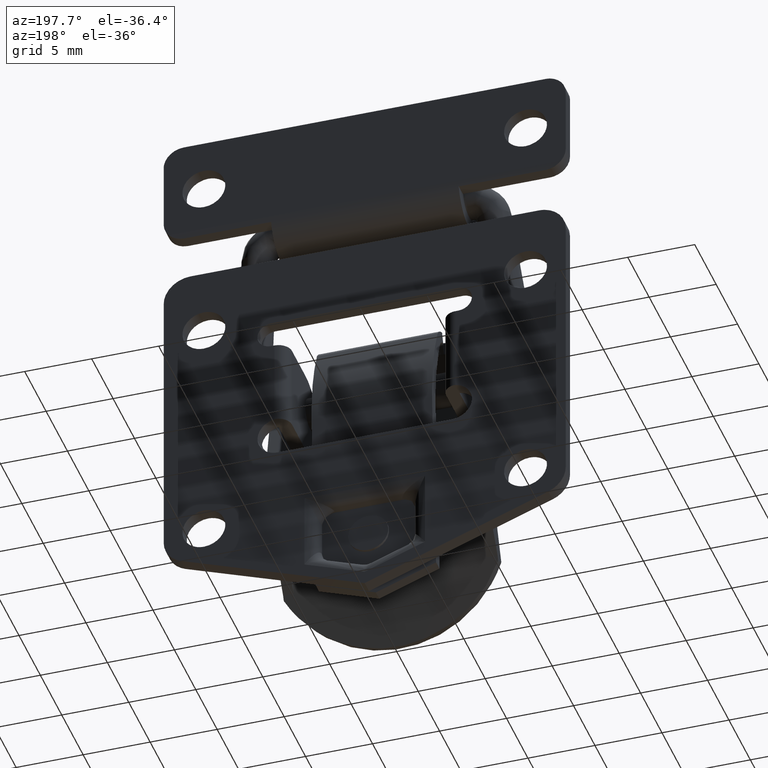
[diagram: clean part render]
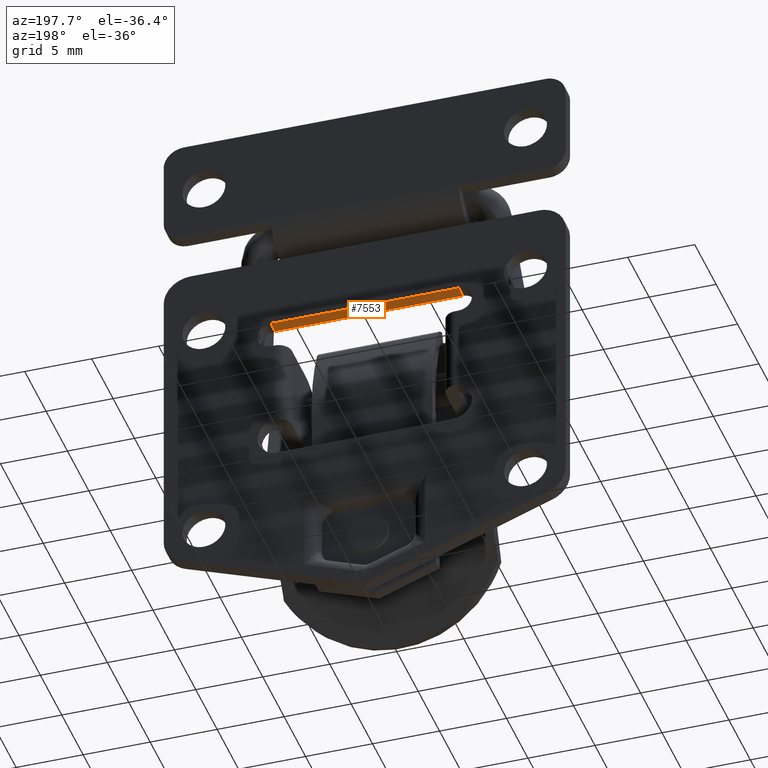
[diagram: same view with one face highlighted and labeled with its STEP entity id]
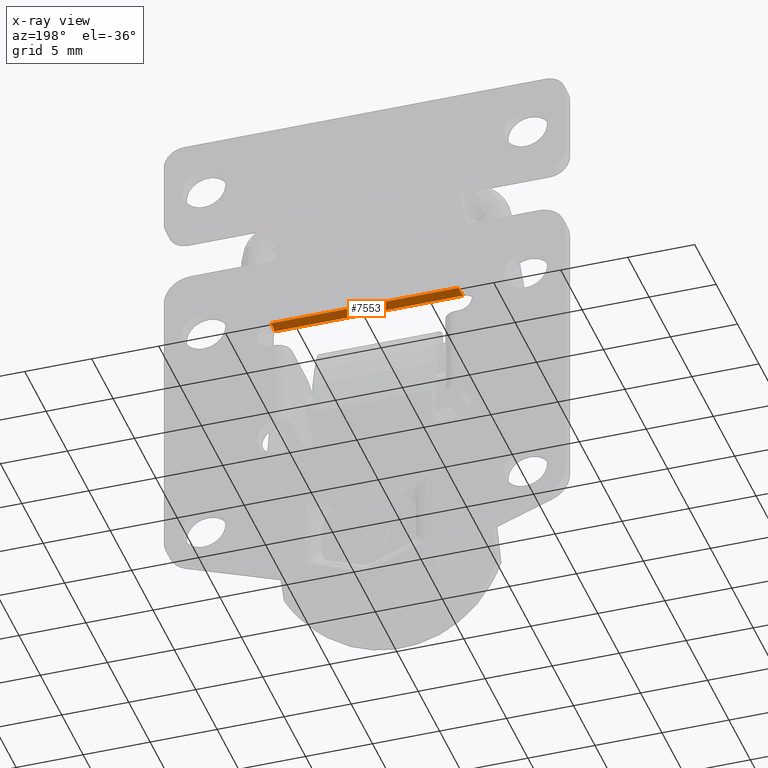
[diagram: x-ray of the same camera — body ghosted, the highlighted face saturated]
A machine part, auxiliary view. The second image highlights one B-rep face of the part: STEP entity #7553.
The next image is the same camera in x-ray: the body ghosted, the highlighted face saturated — about 0% of this face is hidden behind the body in this view.
In plain terms, the highlighted face is a freeform B-spline surface patch.
Its self-contained STEP definition (entity closure, byte-faithful):
#7122=CARTESIAN_POINT('',(1.499999999999946,7.0,-9.250000000000000));
#7123=VERTEX_POINT('',#7122);
#7146=CARTESIAN_POINT('',(2.499999999999945,6.999999947640121,-9.250000000000000));
#7147=VERTEX_POINT('',#7146);
#7165=CARTESIAN_POINT('',(2.499999999999945,6.999999947640121,-9.250000000000000));
#7166=CARTESIAN_POINT('',(1.499999999999946,7.0,-9.250000000000000));
#7167=QUASI_UNIFORM_CURVE('',1,(#7165,#7166),.UNSPECIFIED.,.F.,.U.);
#7168=EDGE_CURVE('',#7147,#7123,#7167,.T.);
#7491=CARTESIAN_POINT('',(1.499999999999946,-7.000000052359820,-9.250000000000000));
#7492=VERTEX_POINT('',#7491);
#7508=CARTESIAN_POINT('',(2.499999999999945,-7.000000052359820,-9.250000000000000));
#7509=VERTEX_POINT('',#7508);
#7510=CARTESIAN_POINT('',(2.499999999999945,-7.000000052359820,-9.250000000000000));
#7511=CARTESIAN_POINT('',(1.499999999999946,-7.000000052359820,-9.250000000000000));
#7512=QUASI_UNIFORM_CURVE('',1,(#7510,#7511),.UNSPECIFIED.,.F.,.U.);
#7513=EDGE_CURVE('',#7509,#7492,#7512,.T.);
#7534=CARTESIAN_POINT('',(2.549949998061751,-7.699300027840477,-9.250000000000000));
#7535=CARTESIAN_POINT('',(1.450049975116050,-7.699300027840477,-9.250000000000000));
#7536=CARTESIAN_POINT('',(2.549949998061751,7.699300350989918,-9.250000000000000));
#7537=CARTESIAN_POINT('',(1.450049975116050,7.699300350989918,-9.250000000000000));
#7538=B_SPLINE_SURFACE_WITH_KNOTS('',1,1,((#7534,#7536),(#7535,#7537)),.UNSPECIFIED.,.F.,.F.,.U.,(2,2),(2,2),(0.041708334948495,0.958291687403247),(0.0,15.398600378830400),.UNSPECIFIED.);
#7539=CARTESIAN_POINT('',(1.499999999999946,7.0,-9.250000000000000));
#7540=CARTESIAN_POINT('',(1.499999999999946,-7.000000052359820,-9.250000000000000));
#7541=QUASI_UNIFORM_CURVE('',1,(#7539,#7540),.UNSPECIFIED.,.F.,.U.);
#7542=EDGE_CURVE('',#7123,#7492,#7541,.T.);
#7543=ORIENTED_EDGE('',*,*,#7542,.F.);
#7544=ORIENTED_EDGE('',*,*,#7168,.F.);
#7545=CARTESIAN_POINT('',(2.499999999999945,6.999999947640121,-9.250000000000000));
#7546=CARTESIAN_POINT('',(2.499999999999945,-7.000000052359820,-9.250000000000000));
#7547=QUASI_UNIFORM_CURVE('',1,(#7545,#7546),.UNSPECIFIED.,.F.,.U.);
#7548=EDGE_CURVE('',#7147,#7509,#7547,.T.);
#7549=ORIENTED_EDGE('',*,*,#7548,.T.);
#7550=ORIENTED_EDGE('',*,*,#7513,.T.);
#7551=EDGE_LOOP('',(#7543,#7544,#7549,#7550));
#7552=FACE_OUTER_BOUND('',#7551,.T.);
#7553=ADVANCED_FACE('',(#7552),#7538,.T.);